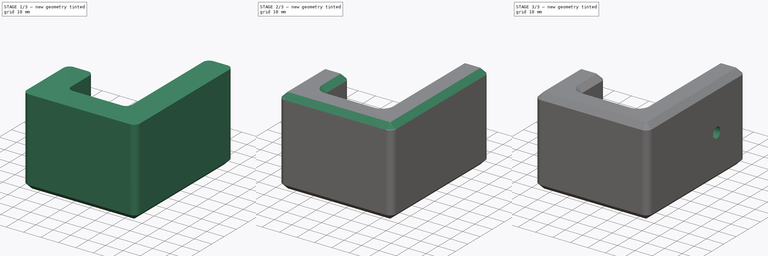
[diagram: build sequence overview — one tinted view per stage of 3, left to right]
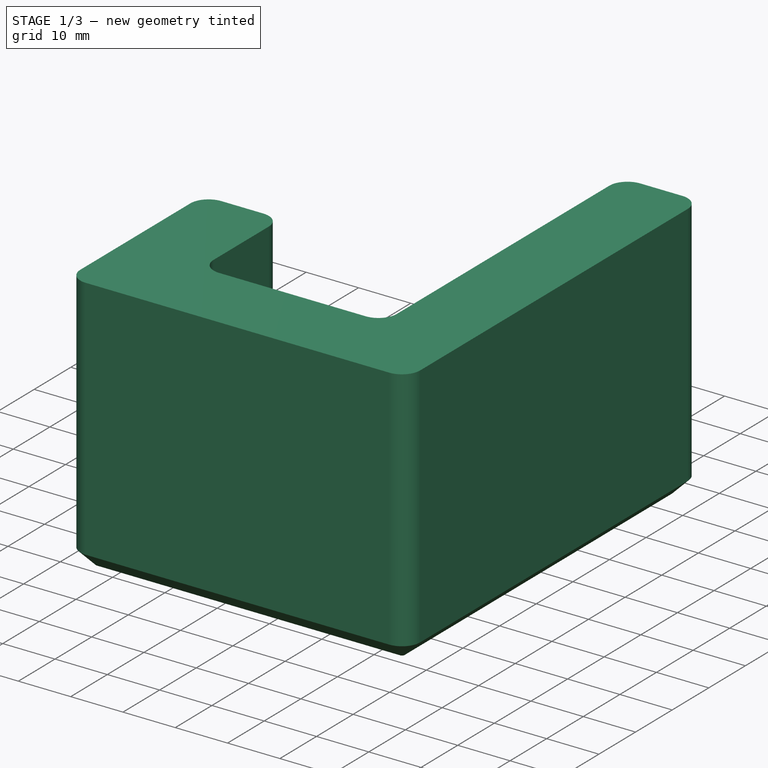
[diagram: stage 1 of 3 — iso view after this stage's code; geometry added in this stage tinted green]
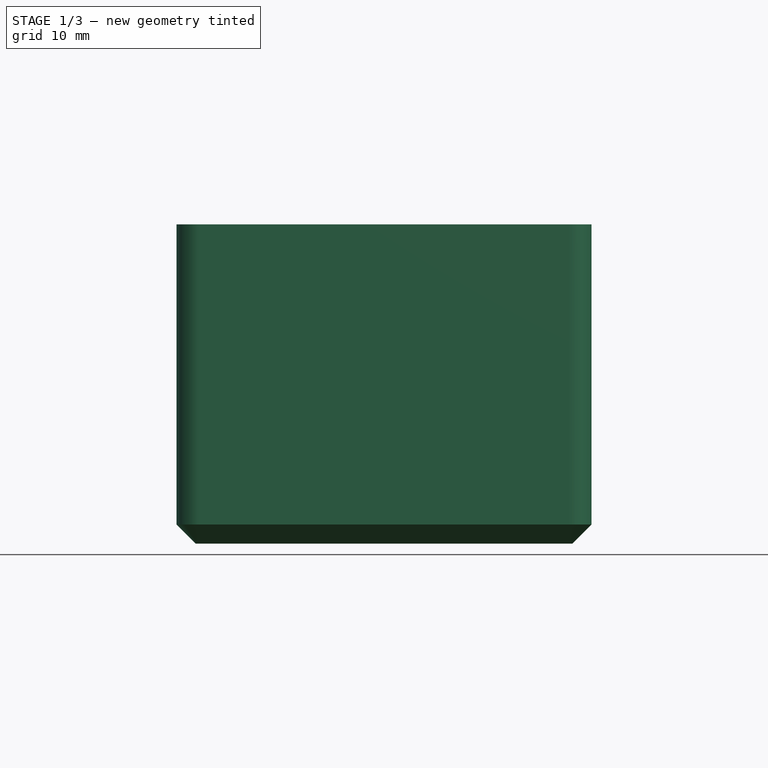
[diagram: stage 1 of 3 — front view after this stage's code; geometry added in this stage tinted green]
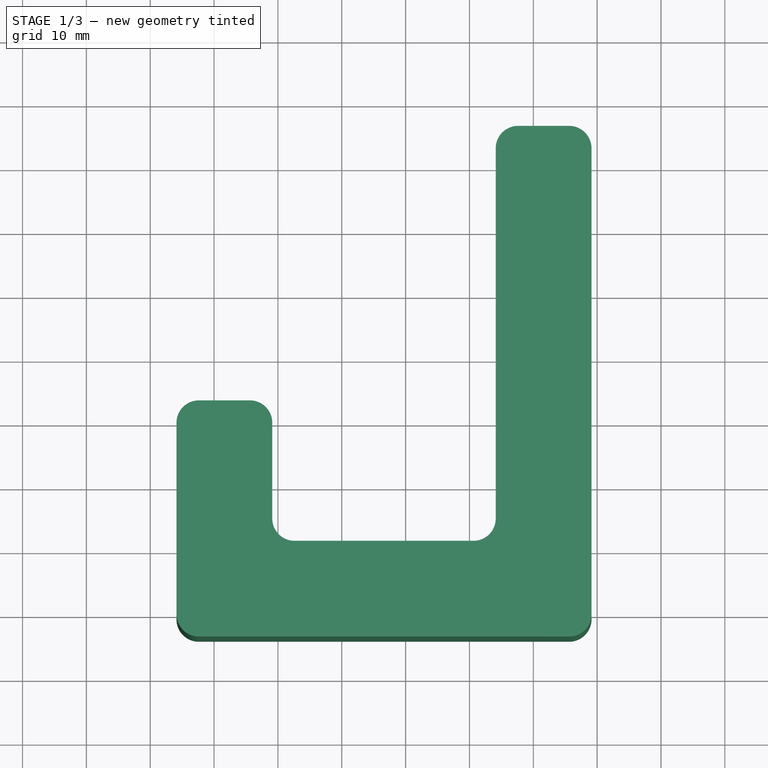
[diagram: stage 1 of 3 — top view after this stage's code; geometry added in this stage tinted green]
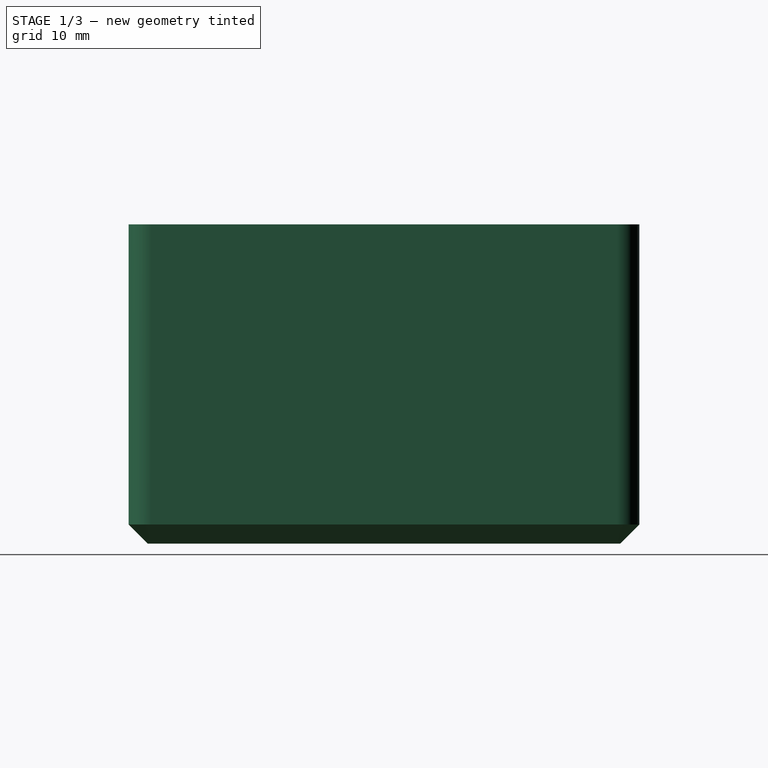
[diagram: stage 1 of 3 — right view after this stage's code; geometry added in this stage tinted green]
FCSTD DOCUMENT  (FreeCAD 0.19R23578 (Git))
Label: headphone holder
License: All rights reserved
LicenseURL: http://en.wikipedia.org/wiki/All_rights_reserved
objects: PartDesign::Chamfer×3, Sketcher::SketchObject×2, PartDesign::Pad×1, PartDesign::Plane×1, PartDesign::Pocket×1, PartDesign::Body×1
note: 14 computed .brp shape members not serialized (recipe doc carries the construction recipe); baked Part::Feature solids carry a one-line shape summary decoded from their .brp

FEATURE [Sketcher::SketchObject] Sketch
  MapMode = 5
  Support = -> [XY_Plane]
  sketch-geometry (16):
    g0: LineSegment StartX=-35.8852 StartY=9.61817 StartZ=0 EndX=-35.8852 EndY=-20.3818 EndZ=0
    g1: LineSegment StartX=-32.3852 StartY=-23.8818 StartZ=0 EndX=25.6148 EndY=-23.8818 EndZ=0
    g2: LineSegment StartX=29.1148 StartY=-20.3818 StartZ=0 EndX=29.1148 EndY=52.6182 EndZ=0
    g3: LineSegment StartX=25.6148 StartY=56.1182 StartZ=0 EndX=17.6148 EndY=56.1182 EndZ=0
    g4: LineSegment StartX=14.1148 StartY=52.6182 StartZ=0 EndX=14.1148 EndY=-5.38183 EndZ=0
    g5: LineSegment StartX=10.6148 StartY=-8.88183 StartZ=0 EndX=-17.3852 EndY=-8.88183 EndZ=0
    g6: LineSegment StartX=-20.8852 StartY=-5.38183 StartZ=0 EndX=-20.8852 EndY=9.61817 EndZ=0
    g7: LineSegment StartX=-24.3852 StartY=13.1182 StartZ=0 EndX=-32.3852 EndY=13.1182 EndZ=0
    g8: ArcOfCircle CenterX=-17.3852 CenterY=-5.38183 CenterZ=0 NormalX=0 NormalY=0 NormalZ=1 AngleXU=0 Radius=3.5 StartAngle=3.14159 EndAngle=4.71239
    g9: ArcOfCircle CenterX=10.6148 CenterY=-5.38183 CenterZ=0 NormalX=0 NormalY=0 NormalZ=1 AngleXU=0 Radius=3.5 StartAngle=4.71239 EndAngle=6.28319
    g10: ArcOfCircle CenterX=-24.3852 CenterY=9.61817 CenterZ=0 NormalX=0 NormalY=0 NormalZ=1 AngleXU=0 Radius=3.5 StartAngle=0 EndAngle=1.5708
    g11: ArcOfCircle CenterX=-32.3852 CenterY=9.61817 CenterZ=0 NormalX=0 NormalY=0 NormalZ=1 AngleXU=0 Radius=3.5 StartAngle=1.5708 EndAngle=3.14159
    g12: ArcOfCircle CenterX=-32.3852 CenterY=-20.3818 CenterZ=0 NormalX=0 NormalY=0 NormalZ=1 AngleXU=0 Radius=3.5 StartAngle=3.14159 EndAngle=4.71239
    g13: ArcOfCircle CenterX=25.6148 CenterY=-20.3818 CenterZ=0 NormalX=0 NormalY=0 NormalZ=1 AngleXU=0 Radius=3.5 StartAngle=4.71239 EndAngle=6.28319
    g14: ArcOfCircle CenterX=17.6148 CenterY=52.6182 CenterZ=0 NormalX=0 NormalY=0 NormalZ=1 AngleXU=0 Radius=3.5 StartAngle=1.5708 EndAngle=3.14159
    g15: ArcOfCircle CenterX=25.6148 CenterY=52.6182 CenterZ=0 NormalX=0 NormalY=0 NormalZ=1 AngleXU=0 Radius=3.5 StartAngle=6e-16 EndAngle=1.5708
  constraints (38):
    c: Vertical(g0)
    c: Horizontal(g1)
    c: Vertical(g2)
    c: Horizontal(g3)
    c: Vertical(g4)
    c: Horizontal(g5)
    c: Vertical(g6)
    c: Horizontal(g7)
    c: Tangent(g6,g8) = 1.5708
    c: Tangent(g5,g8) = 1.5708
    c: Tangent(g4,g9) = 1.5708
    c: Tangent(g5,g9) = 1.5708
    c: Tangent(g7,g10) = -1.5708
    c: Tangent(g6,g10) = -1.5708
    c: Tangent(g7,g11) = -1.5708
    c: Tangent(g0,g11) = -1.5708
    c: Tangent(g0,g12) = -1.5708
    c: Tangent(g1,g12) = -1.5708
    c: Tangent(g1,g13) = -1.5708
    c: Tangent(g2,g13) = -1.5708
    c: DistanceY(g0,g0) = 30
    c: DistanceX(g0,g6) = 15
    c: DistanceY(g1,g5) = 15
    c: Tangent(g3,g14) = -1.5708
    c: Tangent(g4,g14) = -1.5708
    c: Tangent(g3,g15) = -1.5708
    c: Tangent(g2,g15) = -1.5708
    c: Radius(g14) = 3.5
    c: Equal(g15,g14)
    c: Radius(g9) = 3.5
    c: Equal(g8,g9)
    c: Radius(g13) = 3.5
    c: Equal(g13,g12)
    c: Radius(g10) = 3.5
    c: Equal(g10,g11)
    c: DistanceX(g4,g2) = 15
    c: DistanceX(g6,g4) = 35
    c: DistanceY(g1,g3) = 80
FEATURE [PartDesign::Pad] Pad
  Direction = (1,1,1)
  Length = 50
  Length2 = 100
  Profile = -> Sketch
  Type = 0
FEATURE [PartDesign::Chamfer] Chamfer
  Angle = 45
  Base = -> Pad [Edge27]
  BaseFeature = -> Pad
  ChamferType = 0
  FlipDirection = false
  Size = 3
  Size2 = 1
  SupportTransform = false
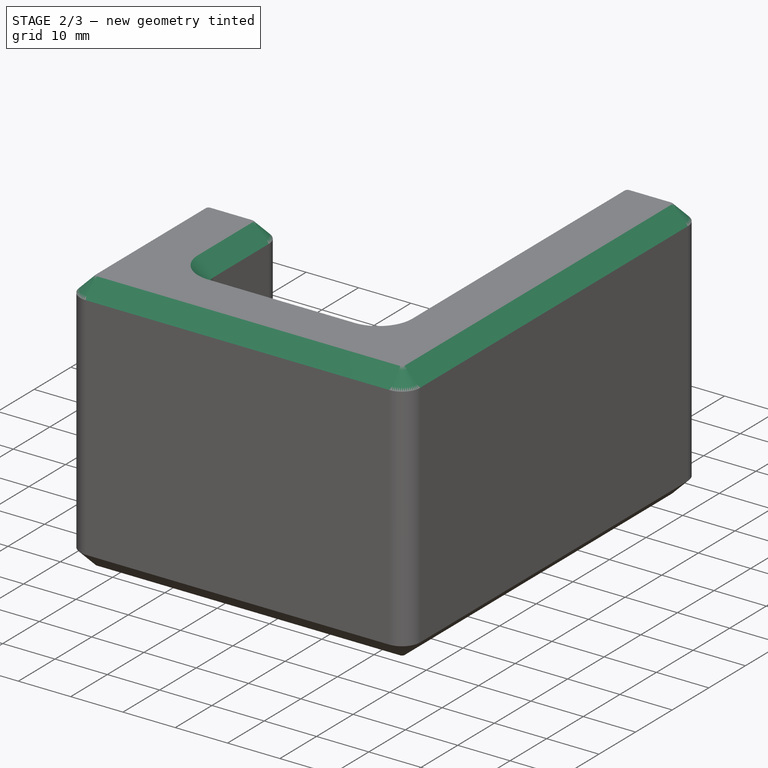
[diagram: stage 2 of 3 — iso view after this stage's code; geometry added in this stage tinted green]
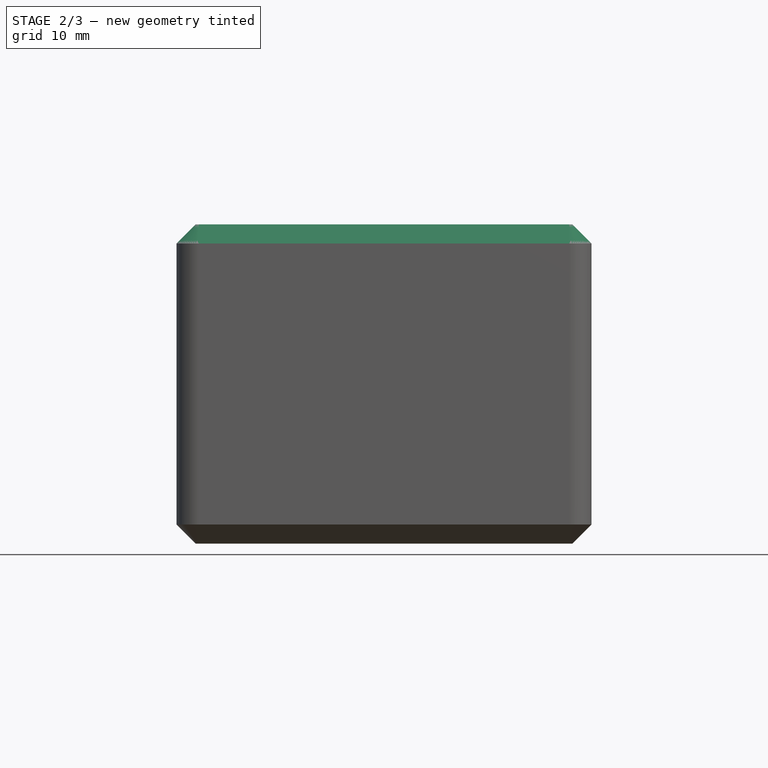
[diagram: stage 2 of 3 — front view after this stage's code; geometry added in this stage tinted green]
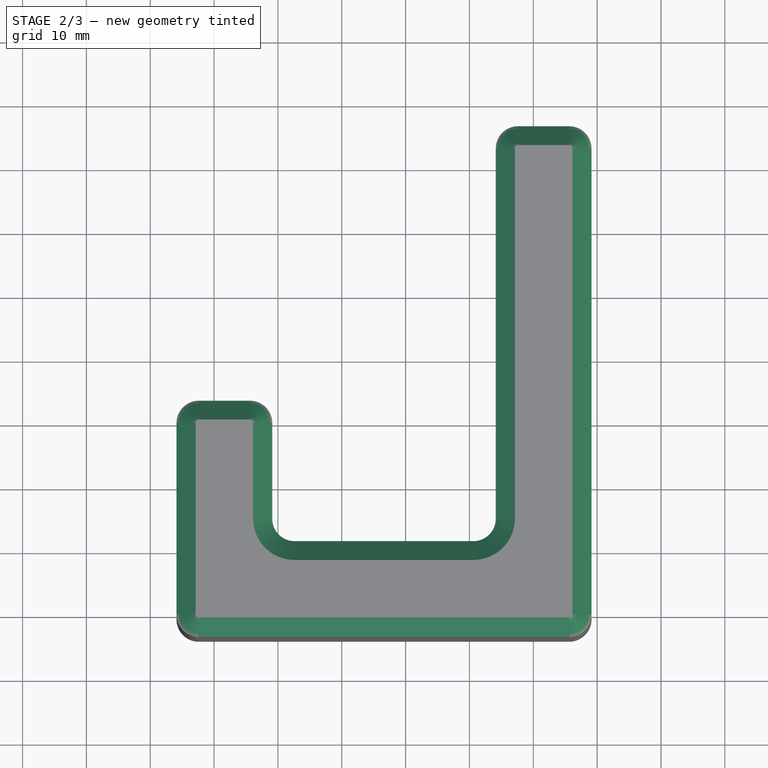
[diagram: stage 2 of 3 — top view after this stage's code; geometry added in this stage tinted green]
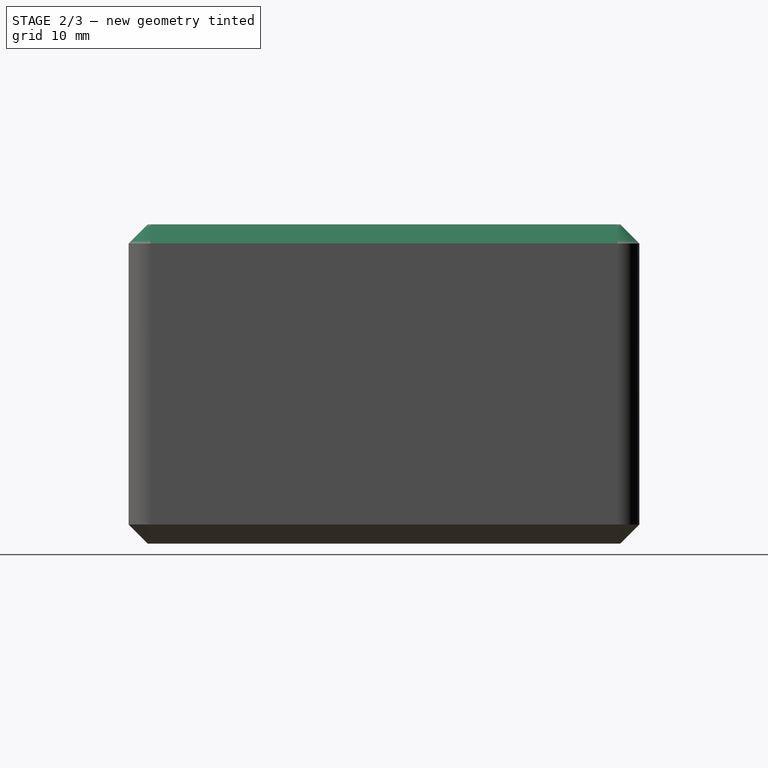
[diagram: stage 2 of 3 — right view after this stage's code; geometry added in this stage tinted green]
FEATURE [PartDesign::Chamfer] Chamfer001
  Angle = 45
  Base = -> Chamfer [Edge18]
  BaseFeature = -> Chamfer
  ChamferType = 0
  FlipDirection = false
  Size = 3
  Size2 = 1
  SupportTransform = false
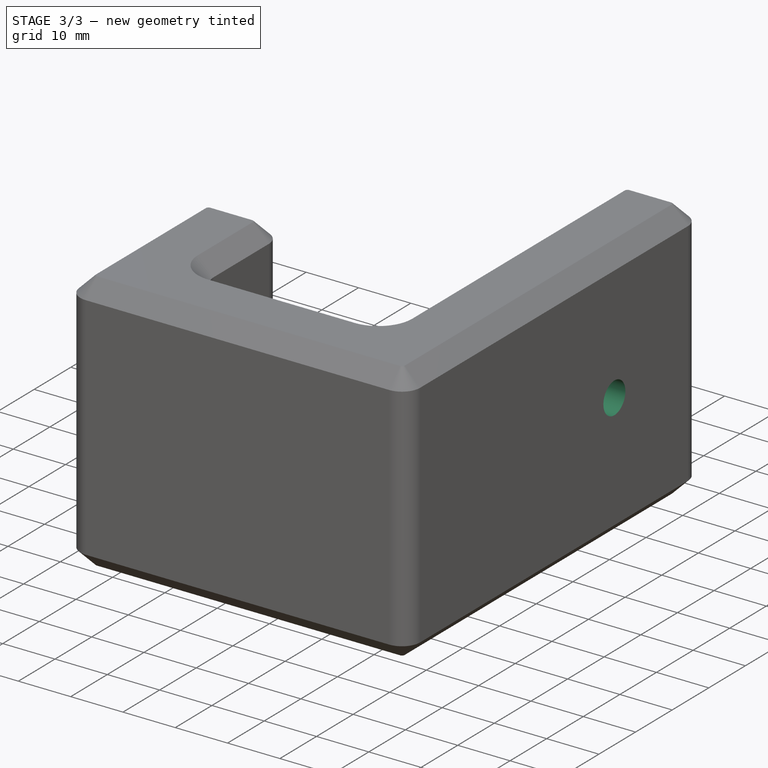
[diagram: stage 3 of 3 — iso view after this stage's code; geometry added in this stage tinted green]
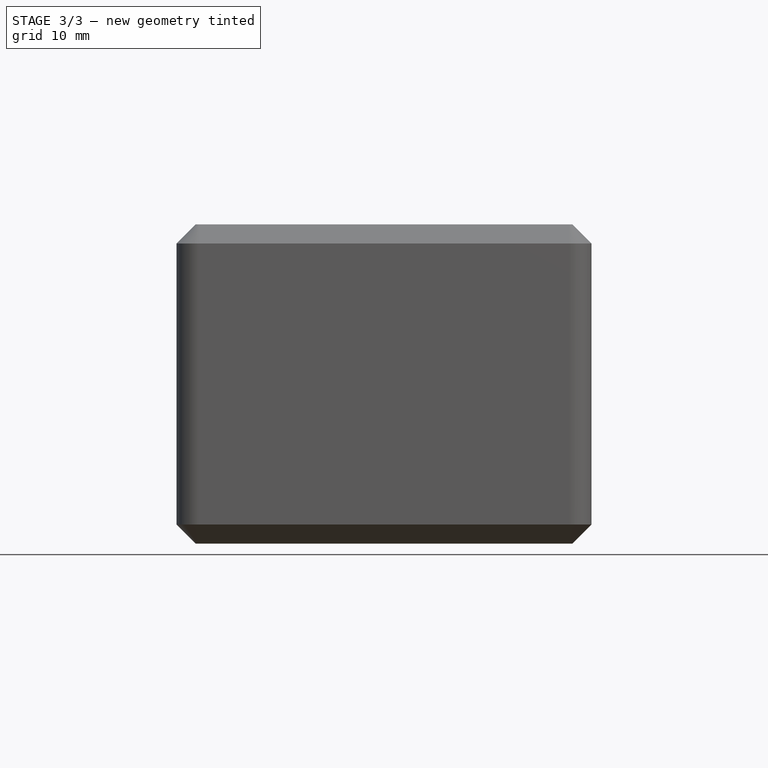
[diagram: stage 3 of 3 — front view after this stage's code; geometry added in this stage tinted green]
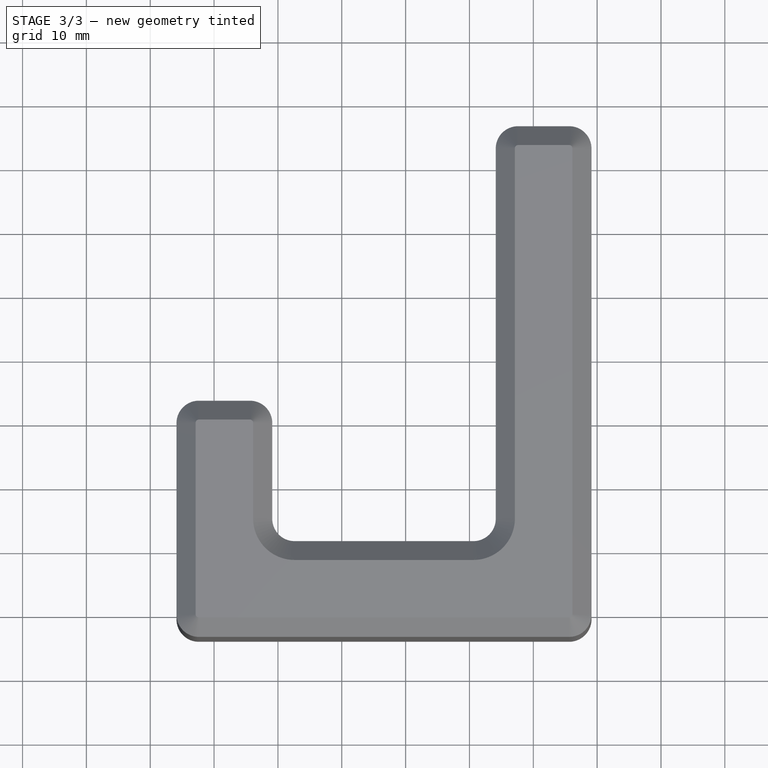
[diagram: stage 3 of 3 — top view after this stage's code; geometry added in this stage tinted green]
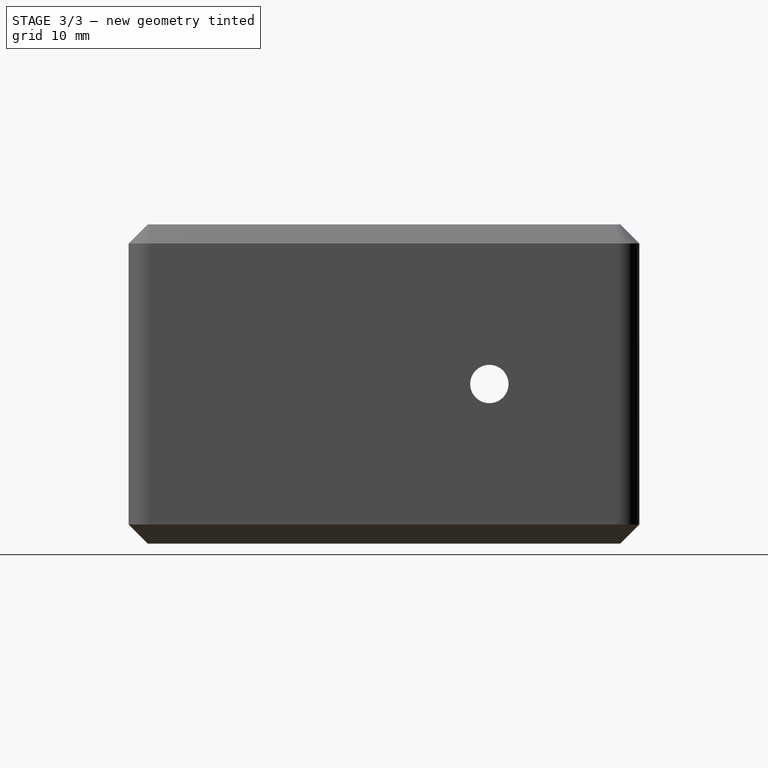
[diagram: stage 3 of 3 — right view after this stage's code; geometry added in this stage tinted green]
FEATURE [PartDesign::Plane] DatumPlane001
  AttachmentOffset = pos=(14,0,0) rot=(0,1,0;1.5708rad)
  Length = 90.5998
  MapMode = 5
  Placement = pos=(14,0,0) rot=(0,1,0;1.5708rad)
  ResizeMode = 0
  Support = -> [XY_Plane]
  Width = 96.718
FEATURE [Sketcher::SketchObject] Sketch001
  ExternalGeometry = -> [Chamfer001]
  MapMode = 5
  Placement = pos=(14,0,0) rot=(0,1,0;1.5708rad)
  Support = -> [DatumPlane001]
  sketch-geometry (1):
    g0: Circle CenterX=-25 CenterY=32.6182 CenterZ=0 NormalX=0 NormalY=0 NormalZ=1 AngleXU=0 Radius=3
  constraints (3):
    c: DistanceY(g0,g-3) = 20
    c: DistanceX(g-3,g0) = 25
    c: Radius(g0) = 3
FEATURE [PartDesign::Pocket] Pocket
  BaseFeature = -> Chamfer001
  Length = 5
  Length2 = 100
  Profile = -> Sketch001
  Reversed = true
  Type = 1
FEATURE [PartDesign::Chamfer] Chamfer002
  Angle = 45
  Base = -> Pocket [Edge106]
  BaseFeature = -> Pocket
  ChamferType = 0
  FlipDirection = false
  Size = 2
  Size2 = 1
  SupportTransform = false
FEATURE [PartDesign::Body] Body
  Group = -> [Sketch,Pad,Chamfer,Chamfer001,DatumPlane001,Sketch001,Pocket,Chamfer002]
  Origin = -> Origin
  Tip = -> Chamfer002
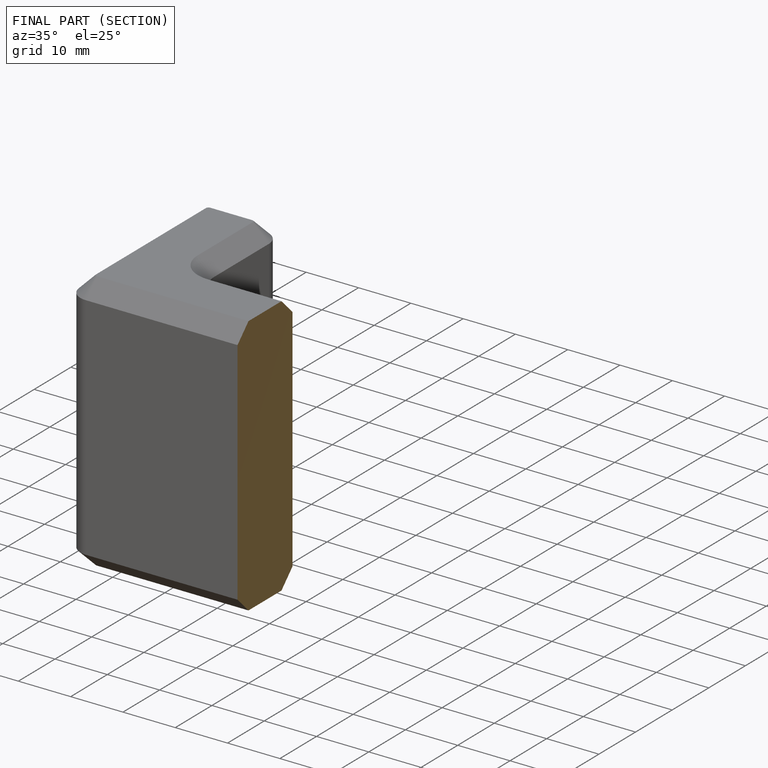
[diagram: finished part — half-section view (interior)]
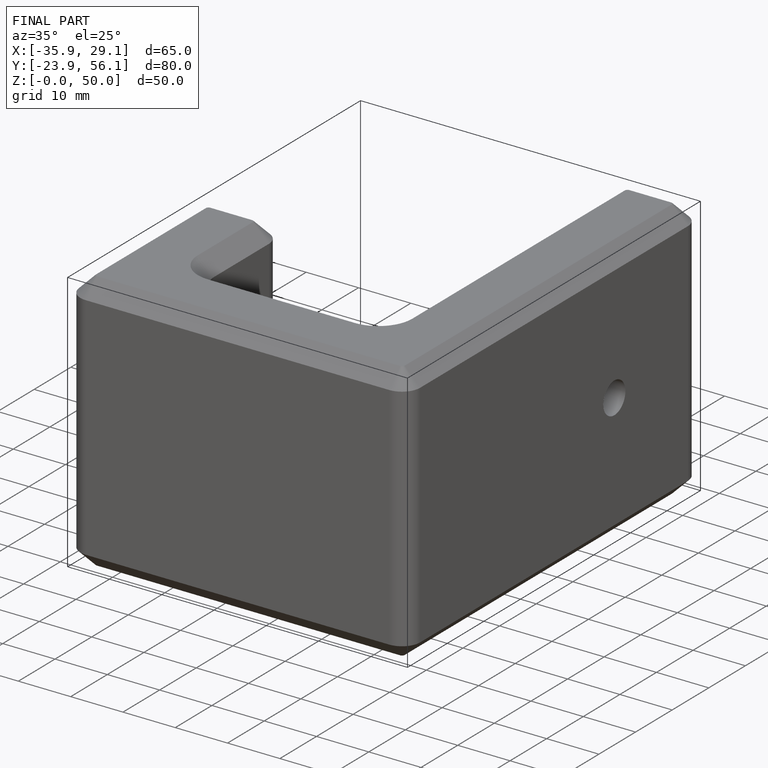
[diagram: finished part — iso view with bounding-box wireframe]
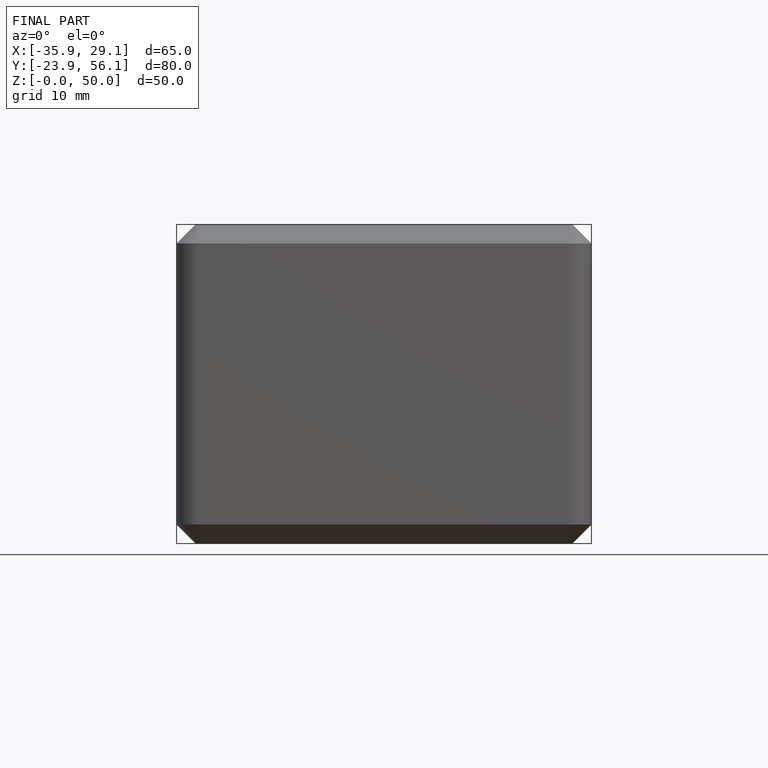
[diagram: finished part — front view with bounding-box wireframe]
